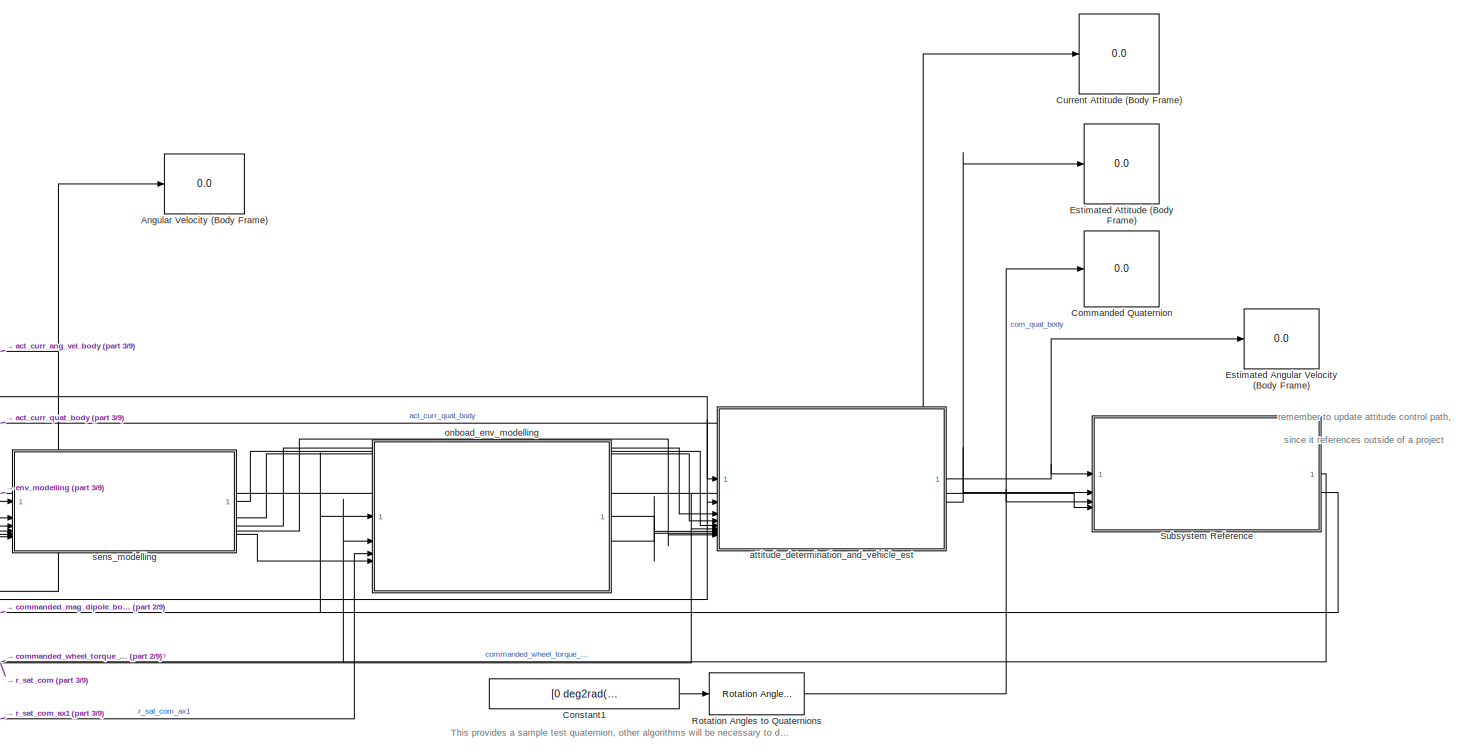
[diagram: root canvas - part 1/9, top right region]
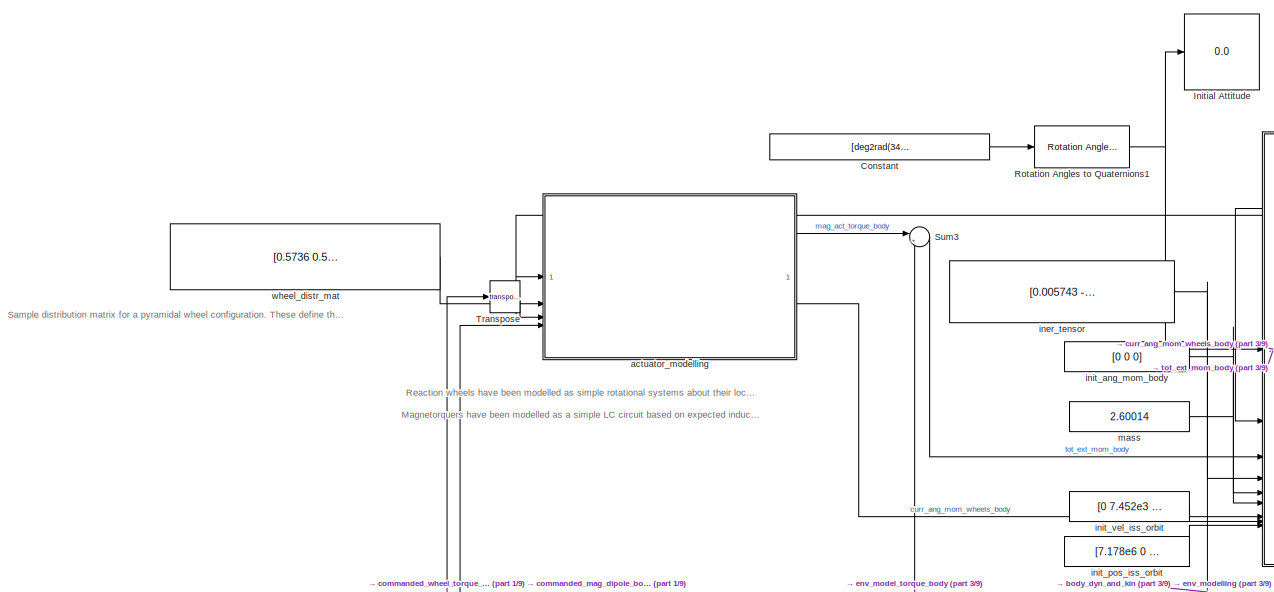
[diagram: root canvas - part 2/9, top left region]
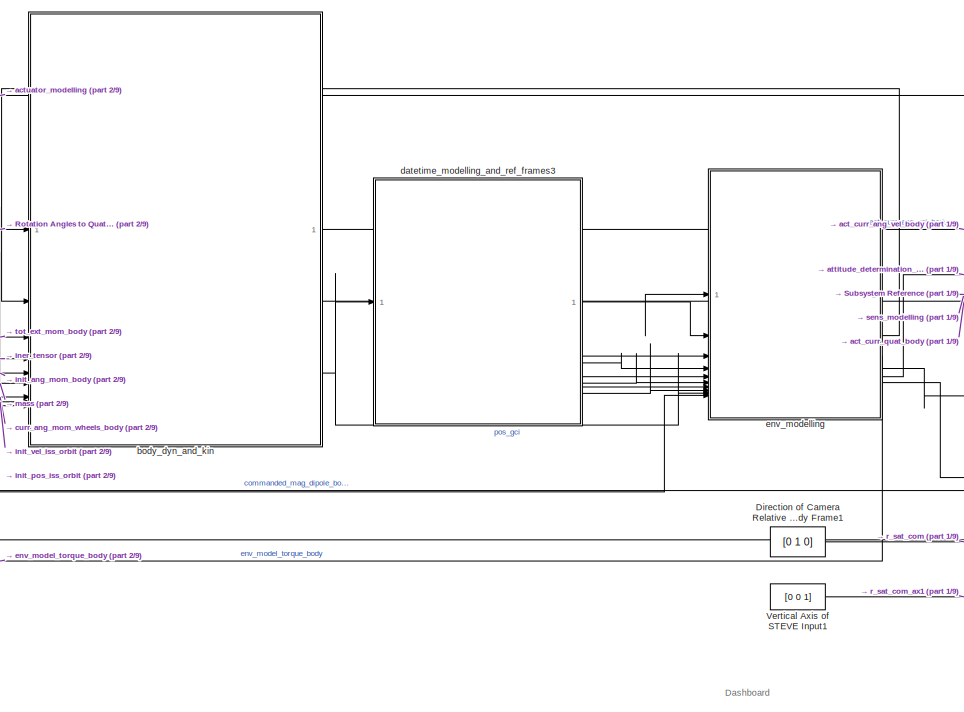
[diagram: root canvas - part 3/9, top center region]
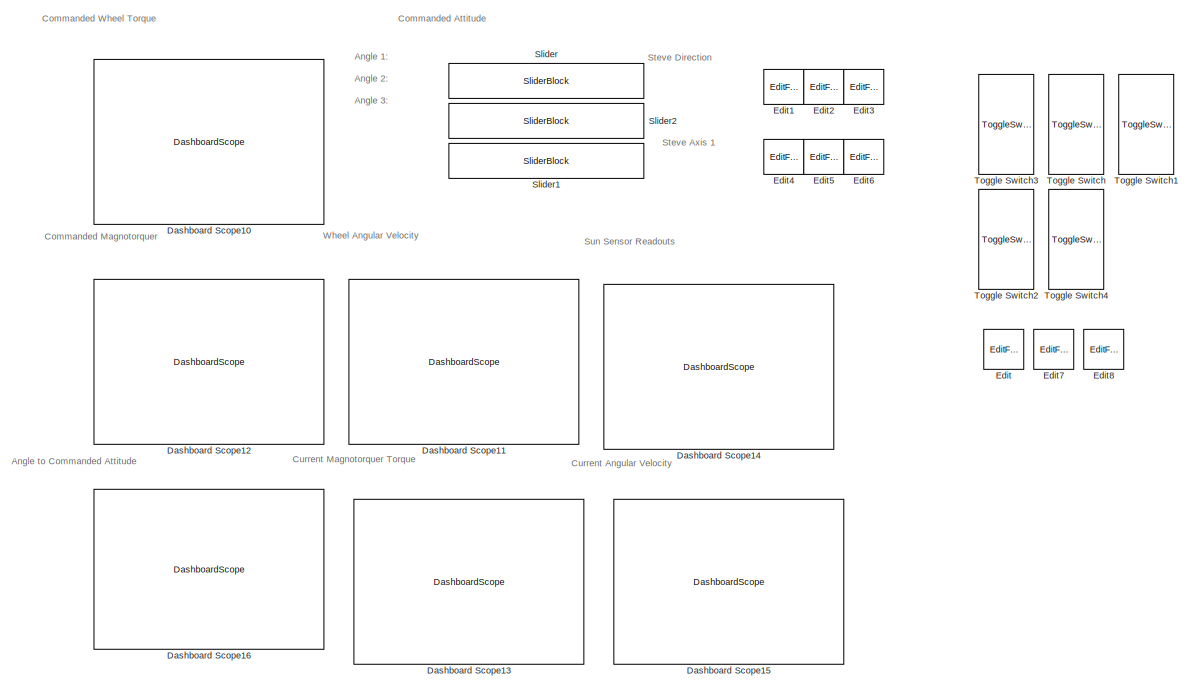
[diagram: root canvas - part 4/9, middle right region]
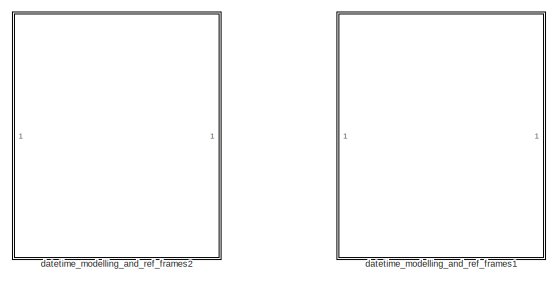
[diagram: root canvas - part 5/9, central region]
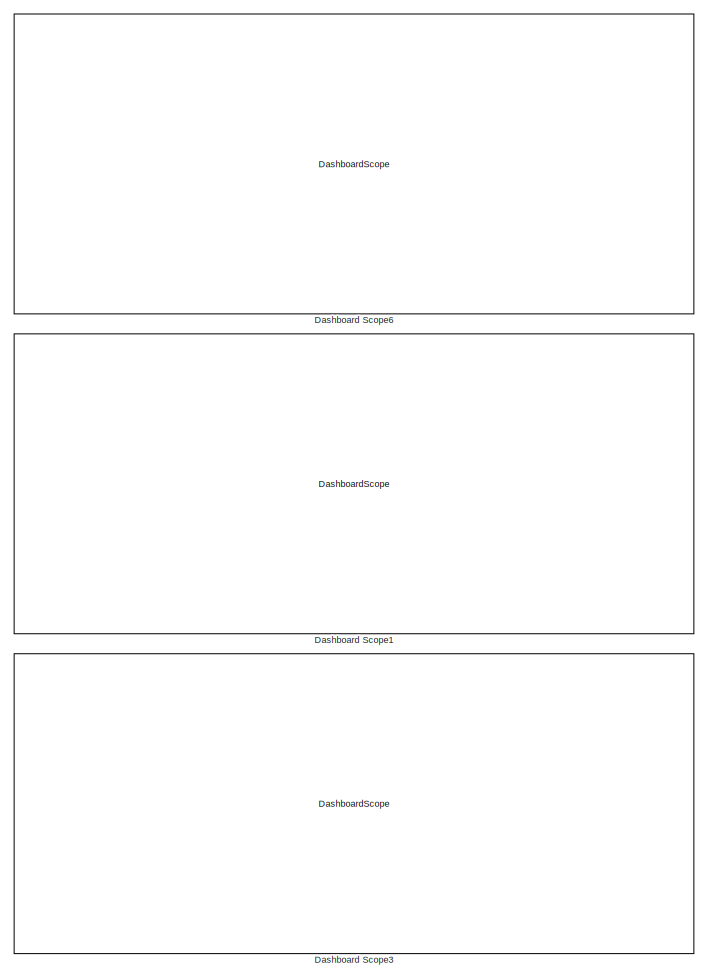
[diagram: root canvas - part 6/9, bottom left region]
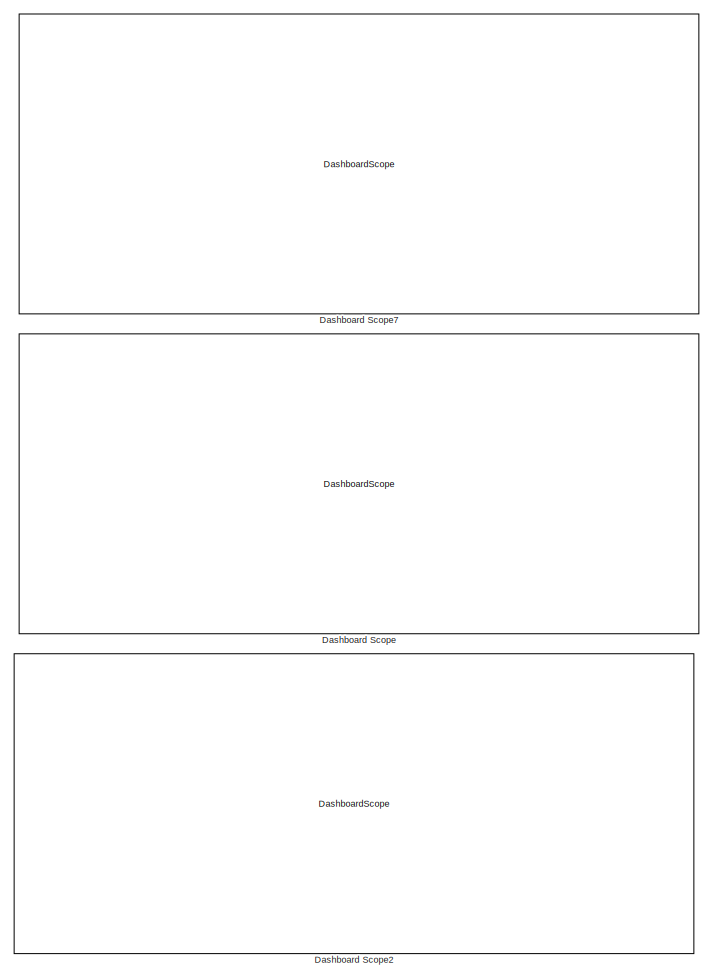
[diagram: root canvas - part 7/9, bottom center region]
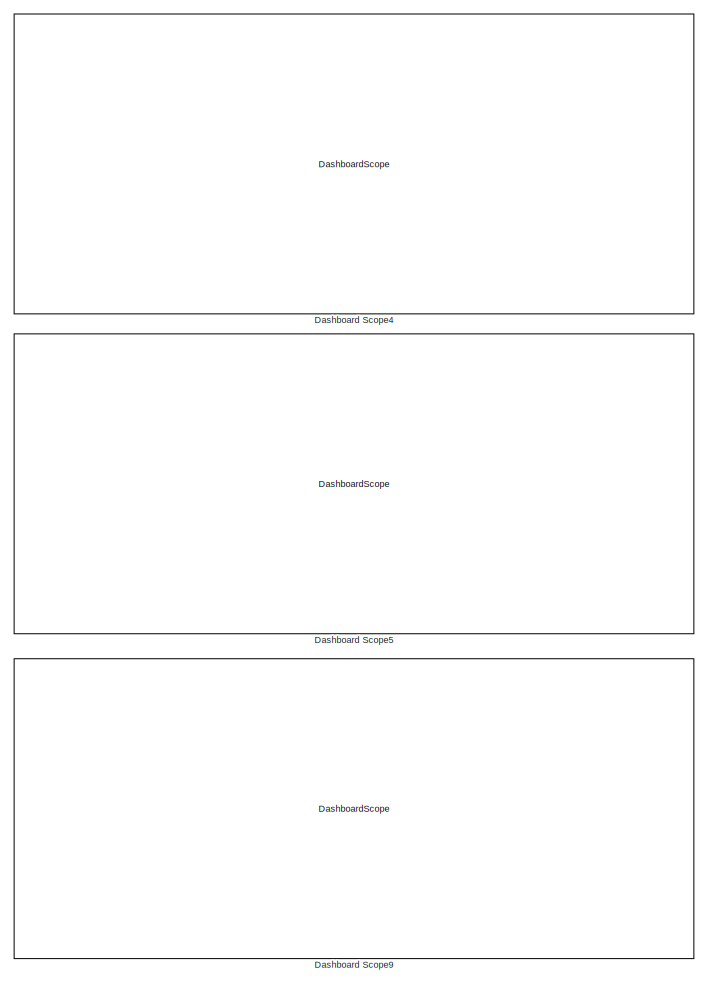
[diagram: root canvas - part 8/9, bottom center region]
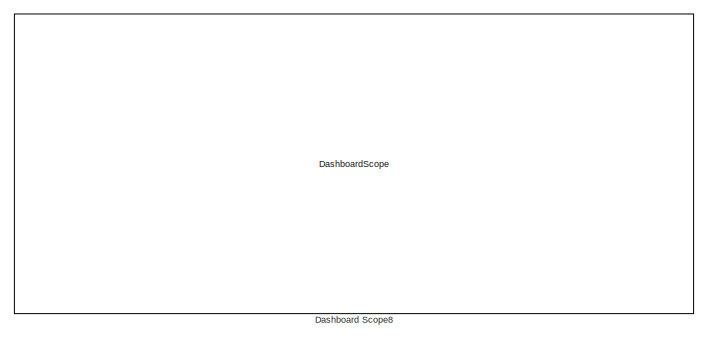
[diagram: root canvas - part 9/9, bottom right region]
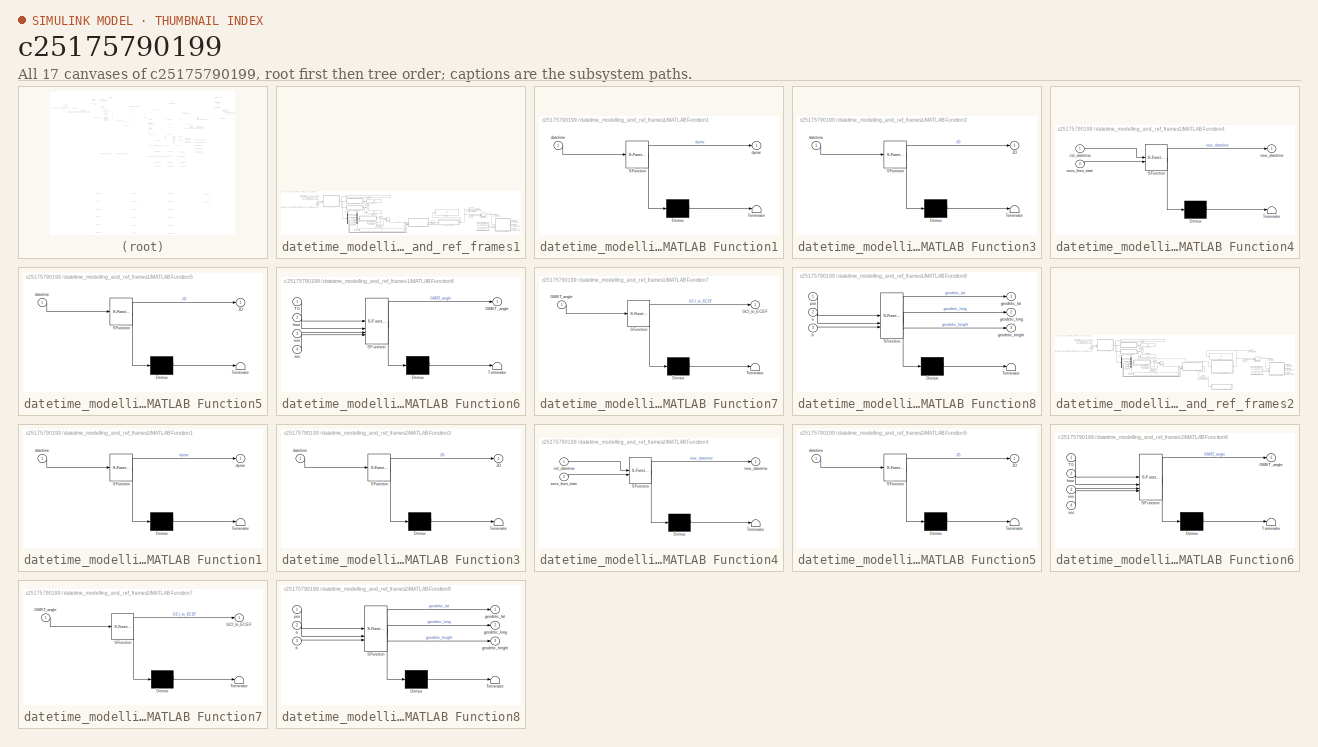
[diagram: thumbnail index - all 17 canvases of the model, root first then tree order]
MODEL slx_c25175790199
KIND model
CONFIG AbsTol = auto
CONFIG EnableMultiTasking = off
CONFIG FixedStep = 0.01
CONFIG MaxStep = 1
CONFIG MinStep = 0.001
CONFIG RelTol = 1e-3
CONFIG SampleTimeConstraint = Unconstrained
CONFIG SolverName = FixedStepAuto
CONFIG StartTime = 0.0
CONFIG StopTime = 7200
BLOCK [Display] Angular Velocity (Body Frame)
  Decimation = 1
BLOCK [Display] Commanded Quaternion
  Decimation = 1
BLOCK [Constant] Constant
  Value = [deg2rad(34) deg2rad(-63) deg2rad(21)]
BLOCK [Constant] Constant1
  Value = [0 deg2rad(135) deg2rad(-30)]
BLOCK [Display] Current Attitude (Body Frame)
  Decimation = 1
BLOCK [DashboardScope] Dashboard Scope
BLOCK [DashboardScope] Dashboard Scope1
BLOCK [DashboardScope] Dashboard Scope10
  Commented = on
  NormalizeYAxis = on
  TicksPosition = Inside
  Ymin = 0
BLOCK [DashboardScope] Dashboard Scope11
  Commented = on
  TicksPosition = Inside
BLOCK [DashboardScope] Dashboard Scope12
  Commented = on
  TicksPosition = Inside
BLOCK [DashboardScope] Dashboard Scope13
  Commented = on
  TicksPosition = Inside
BLOCK [DashboardScope] Dashboard Scope14
  Commented = on
  TicksPosition = Inside
BLOCK [DashboardScope] Dashboard Scope15
  Commented = on
  TicksPosition = Inside
BLOCK [DashboardScope] Dashboard Scope16
  Commented = on
  NormalizeYAxis = on
  TicksPosition = Inside
  UpdateMode = Scroll
  Ymin = 0
BLOCK [DashboardScope] Dashboard Scope2
BLOCK [DashboardScope] Dashboard Scope3
BLOCK [DashboardScope] Dashboard Scope4
BLOCK [DashboardScope] Dashboard Scope5
BLOCK [DashboardScope] Dashboard Scope6
BLOCK [DashboardScope] Dashboard Scope7
BLOCK [DashboardScope] Dashboard Scope8
BLOCK [DashboardScope] Dashboard Scope9
BLOCK [Constant] Direction of Camera Relative to Body Frame1
  Value = [0 1 0]
BLOCK [EditField] Edit
  Alignment = Center
  Commented = on
  LabelPosition = Hide
  ShowInitialText = on
BLOCK [EditField] Edit1
  Alignment = Center
  Commented = on
  LabelPosition = Hide
  ShowInitialText = on
BLOCK [EditField] Edit2
  Alignment = Center
  Commented = on
  LabelPosition = Hide
  ShowInitialText = on
BLOCK [EditField] Edit3
  Alignment = Center
  Commented = on
  LabelPosition = Hide
  ShowInitialText = on
BLOCK [EditField] Edit4
  Alignment = Center
  Commented = on
  LabelPosition = Hide
  ShowInitialText = on
BLOCK [EditField] Edit5
  Alignment = Center
  Commented = on
  LabelPosition = Hide
  ShowInitialText = on
BLOCK [EditField] Edit6
  Alignment = Center
  Commented = on
  LabelPosition = Hide
  ShowInitialText = on
BLOCK [EditField] Edit7
  Alignment = Center
  Commented = on
  LabelPosition = Hide
  ShowInitialText = on
BLOCK [EditField] Edit8
  Alignment = Center
  Commented = on
  LabelPosition = Hide
  ShowInitialText = on
BLOCK [Display] Estimated Angular Velocity (Body Frame)
  Decimation = 1
BLOCK [Display] Estimated Attitude (Body Frame)
  Decimation = 1
BLOCK [Display] Initial Attitude
  Decimation = 1
BLOCK [Reference] Rotation Angles to Quaternions  REF=sharedtransform/Rotation Angles to Quaternions
  AttributesFormatString = Rotation Order: %<rotationOrder>
  LibrarySourceBlock = aerolibtransform2/Rotation Angles to Quaternions
  SourceBlock = sharedtransform/Rotation Angles to Quaternions
  SourceType = Ang2Quat
BLOCK [Reference] Rotation Angles to Quaternions1  REF=sharedtransform/Rotation Angles to Quaternions
  AttributesFormatString = Rotation Order: %<rotationOrder>
  LibrarySourceBlock = aerolibtransform2/Rotation Angles to Quaternions
  SourceBlock = sharedtransform/Rotation Angles to Quaternions
  SourceType = Ang2Quat
BLOCK [SliderBlock] Slider
  Commented = on
  LabelPosition = Hide
  ScaleMax = 3.1415
  ScaleMin = -3.1415
BLOCK [SliderBlock] Slider1
  Commented = on
  LabelPosition = Hide
  ScaleMax = 3.1415
  ScaleMin = -3.1415
BLOCK [SliderBlock] Slider2
  Commented = on
  LabelPosition = Hide
  ScaleMax = 3.1415
  ScaleMin = -3.1415
BLOCK [SubSystem] Subsystem Reference
  ReferencedSubsystem = attitude_control
BLOCK [Sum] Sum3
  Inputs = |++
BLOCK [ToggleSwitchBlock] Toggle Switch
  Commented = on
BLOCK [ToggleSwitchBlock] Toggle Switch1
  Commented = on
BLOCK [ToggleSwitchBlock] Toggle Switch2
  Commented = on
BLOCK [ToggleSwitchBlock] Toggle Switch3
  Commented = on
BLOCK [ToggleSwitchBlock] Toggle Switch4
  Commented = on
BLOCK [Math] Transpose
  Operator = transpose
BLOCK [Constant] Vertical Axis of STEVE Input1
  Value = [0 0 1]
BLOCK [SubSystem] actuator_modelling
  ReferencedSubsystem = actuator_modelling
BLOCK [SubSystem] attitude_determination_and_vehicle_est
  ReferencedSubsystem = attitude_determination_and_vehicle_est
BLOCK [SubSystem] body_dyn_and_kin
  ReferencedSubsystem = body_dyn_and_kin
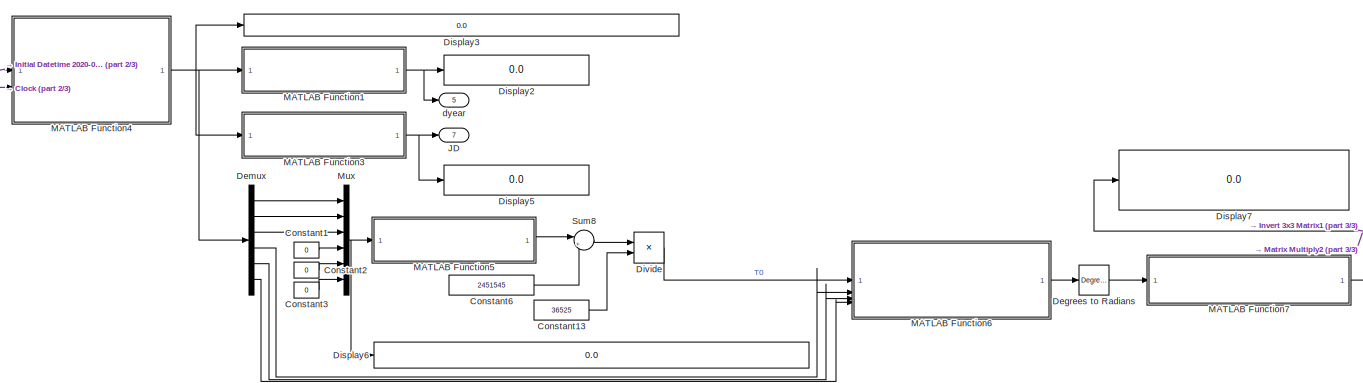
[diagram: datetime_modelling_and_ref_frames1 - part 1/3, center side, full height]
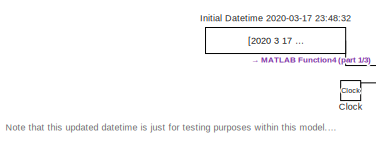
[diagram: datetime_modelling_and_ref_frames1 - part 2/3, top left region]
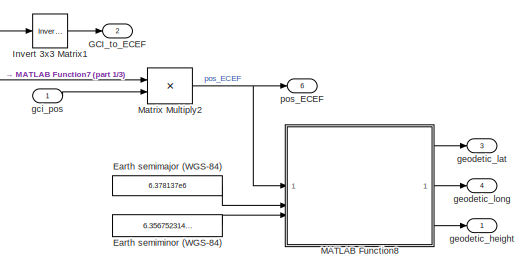
[diagram: datetime_modelling_and_ref_frames1 - part 3/3, middle right region]
BLOCK [SubSystem] datetime_modelling_and_ref_frames1
  Commented = on
BLOCK [Clock] datetime_modelling_and_ref_frames1/Clock
BLOCK [Constant] datetime_modelling_and_ref_frames1/Constant1
  Value = 0
BLOCK [Constant] datetime_modelling_and_ref_frames1/Constant13
  Value = 36525
BLOCK [Constant] datetime_modelling_and_ref_frames1/Constant2
  Value = 0
BLOCK [Constant] datetime_modelling_and_ref_frames1/Constant3
  Value = 0
BLOCK [Constant] datetime_modelling_and_ref_frames1/Constant6
  Value = 2451545
BLOCK [Reference] datetime_modelling_and_ref_frames1/Degrees to Radians  REF=simulink_extras/Transformations/Degrees to
Radians
  SourceBlock = simulink_extras/Transformations/Degrees to\nRadians
  SourceType = DegreesToRadians
BLOCK [Demux] datetime_modelling_and_ref_frames1/Demux
  Outputs = 6
BLOCK [Display] datetime_modelling_and_ref_frames1/Display2
  Decimation = 1
  Format = long
BLOCK [Display] datetime_modelling_and_ref_frames1/Display3
  Decimation = 1
BLOCK [Display] datetime_modelling_and_ref_frames1/Display5
  Decimation = 1
  Format = long
BLOCK [Display] datetime_modelling_and_ref_frames1/Display6
  Decimation = 1
BLOCK [Display] datetime_modelling_and_ref_frames1/Display7
  Decimation = 1
BLOCK [Product] datetime_modelling_and_ref_frames1/Divide
  Inputs = */
BLOCK [Constant] datetime_modelling_and_ref_frames1/Earth semimajor (WGS-84)
  Value = 6.378137e6
BLOCK [Constant] datetime_modelling_and_ref_frames1/Earth semiminor (WGS-84)
  Value = 6.3567523142e6
BLOCK [Outport] datetime_modelling_and_ref_frames1/GCI_to_ECEF
  Port = 2
BLOCK [Constant] datetime_modelling_and_ref_frames1/Initial Datetime 2020-03-17 23:48:32
  Value = [2020 3 17 23 48 32]
BLOCK [Reference] datetime_modelling_and_ref_frames1/Invert 3x3 Matrix1  REF=aerolibutil/Invert 
3x3 Matrix
  SourceBlock = aerolibutil/Invert \n3x3 Matrix
  SourceType = Invert 3x3 Matrix
BLOCK [Outport] datetime_modelling_and_ref_frames1/JD
  Port = 7
BLOCK [SubSystem] datetime_modelling_and_ref_frames1/MATLAB Function1
  ErrorFcn = Stateflow.Translate.translate
  PermitHierarchicalResolution = ExplicitOnly
  SFBlockType = MATLAB Function
  TreatAsAtomicUnit = on
BLOCK [Demux] datetime_modelling_and_ref_frames1/MATLAB Function1/ Demux 
  Outputs = 1
BLOCK [S-Function] datetime_modelling_and_ref_frames1/MATLAB Function1/ SFunction 
  EnableBusSupport = on
  FunctionName = sf_sfun
  PortCounts = [1 2]
  SFcnIsStateOwnerBlock = off
  SFunctionDeploymentMode = off
  Tag = Stateflow S-Function 5
BLOCK [Terminator] datetime_modelling_and_ref_frames1/MATLAB Function1/ Terminator 
BLOCK [Inport] datetime_modelling_and_ref_frames1/MATLAB Function1/datetime
BLOCK [Outport] datetime_modelling_and_ref_frames1/MATLAB Function1/dyear
BLOCK [SubSystem] datetime_modelling_and_ref_frames1/MATLAB Function3
  ErrorFcn = Stateflow.Translate.translate
  PermitHierarchicalResolution = ExplicitOnly
  SFBlockType = MATLAB Function
  TreatAsAtomicUnit = on
BLOCK [Demux] datetime_modelling_and_ref_frames1/MATLAB Function3/ Demux 
  Outputs = 1
BLOCK [S-Function] datetime_modelling_and_ref_frames1/MATLAB Function3/ SFunction 
  EnableBusSupport = on
  FunctionName = sf_sfun
  PortCounts = [1 2]
  SFcnIsStateOwnerBlock = off
  SFunctionDeploymentMode = off
  Tag = Stateflow S-Function 19
BLOCK [Terminator] datetime_modelling_and_ref_frames1/MATLAB Function3/ Terminator 
BLOCK [Outport] datetime_modelling_and_ref_frames1/MATLAB Function3/JD
BLOCK [Inport] datetime_modelling_and_ref_frames1/MATLAB Function3/datetime
BLOCK [SubSystem] datetime_modelling_and_ref_frames1/MATLAB Function4
  ErrorFcn = Stateflow.Translate.translate
  PermitHierarchicalResolution = ExplicitOnly
  SFBlockType = MATLAB Function
  TreatAsAtomicUnit = on
BLOCK [Demux] datetime_modelling_and_ref_frames1/MATLAB Function4/ Demux 
  Outputs = 1
BLOCK [S-Function] datetime_modelling_and_ref_frames1/MATLAB Function4/ SFunction 
  EnableBusSupport = on
  FunctionName = sf_sfun
  PortCounts = [2 2]
  SFcnIsStateOwnerBlock = off
  SFunctionDeploymentMode = off
  Tag = Stateflow S-Function 20
BLOCK [Terminator] datetime_modelling_and_ref_frames1/MATLAB Function4/ Terminator 
BLOCK [Inport] datetime_modelling_and_ref_frames1/MATLAB Function4/init_datetime
BLOCK [Outport] datetime_modelling_and_ref_frames1/MATLAB Function4/new_datetime
BLOCK [Inport] datetime_modelling_and_ref_frames1/MATLAB Function4/secs_from_start
  Port = 2
BLOCK [SubSystem] datetime_modelling_and_ref_frames1/MATLAB Function5
  ErrorFcn = Stateflow.Translate.translate
  PermitHierarchicalResolution = ExplicitOnly
  SFBlockType = MATLAB Function
  TreatAsAtomicUnit = on
BLOCK [Demux] datetime_modelling_and_ref_frames1/MATLAB Function5/ Demux 
  Outputs = 1
BLOCK [S-Function] datetime_modelling_and_ref_frames1/MATLAB Function5/ SFunction 
  EnableBusSupport = on
  FunctionName = sf_sfun
  PortCounts = [1 2]
  SFcnIsStateOwnerBlock = off
  SFunctionDeploymentMode = off
  Tag = Stateflow S-Function 21
BLOCK [Terminator] datetime_modelling_and_ref_frames1/MATLAB Function5/ Terminator 
BLOCK [Outport] datetime_modelling_and_ref_frames1/MATLAB Function5/JD
BLOCK [Inport] datetime_modelling_and_ref_frames1/MATLAB Function5/datetime
BLOCK [SubSystem] datetime_modelling_and_ref_frames1/MATLAB Function6
  ErrorFcn = Stateflow.Translate.translate
  PermitHierarchicalResolution = ExplicitOnly
  SFBlockType = MATLAB Function
  TreatAsAtomicUnit = on
BLOCK [Demux] datetime_modelling_and_ref_frames1/MATLAB Function6/ Demux 
  Outputs = 1
BLOCK [S-Function] datetime_modelling_and_ref_frames1/MATLAB Function6/ SFunction 
  EnableBusSupport = on
  FunctionName = sf_sfun
  PortCounts = [4 2]
  SFcnIsStateOwnerBlock = off
  SFunctionDeploymentMode = off
  Tag = Stateflow S-Function 22
BLOCK [Terminator] datetime_modelling_and_ref_frames1/MATLAB Function6/ Terminator 
BLOCK [Outport] datetime_modelling_and_ref_frames1/MATLAB Function6/GMST_angle
BLOCK [Inport] datetime_modelling_and_ref_frames1/MATLAB Function6/T0
BLOCK [Inport] datetime_modelling_and_ref_frames1/MATLAB Function6/hour
  Port = 2
BLOCK [Inport] datetime_modelling_and_ref_frames1/MATLAB Function6/min
  Port = 3
BLOCK [Inport] datetime_modelling_and_ref_frames1/MATLAB Function6/sec
  Port = 4
BLOCK [SubSystem] datetime_modelling_and_ref_frames1/MATLAB Function7
  ErrorFcn = Stateflow.Translate.translate
  PermitHierarchicalResolution = ExplicitOnly
  SFBlockType = MATLAB Function
  TreatAsAtomicUnit = on
BLOCK [Demux] datetime_modelling_and_ref_frames1/MATLAB Function7/ Demux 
  Outputs = 1
BLOCK [S-Function] datetime_modelling_and_ref_frames1/MATLAB Function7/ SFunction 
  EnableBusSupport = on
  FunctionName = sf_sfun
  PortCounts = [1 2]
  SFcnIsStateOwnerBlock = off
  SFunctionDeploymentMode = off
  Tag = Stateflow S-Function 23
BLOCK [Terminator] datetime_modelling_and_ref_frames1/MATLAB Function7/ Terminator 
BLOCK [Outport] datetime_modelling_and_ref_frames1/MATLAB Function7/GCI_to_ECEF
BLOCK [Inport] datetime_modelling_and_ref_frames1/MATLAB Function7/GMST_angle
BLOCK [SubSystem] datetime_modelling_and_ref_frames1/MATLAB Function8
  ErrorFcn = Stateflow.Translate.translate
  PermitHierarchicalResolution = ExplicitOnly
  SFBlockType = MATLAB Function
  TreatAsAtomicUnit = on
BLOCK [Demux] datetime_modelling_and_ref_frames1/MATLAB Function8/ Demux 
  Outputs = 1
BLOCK [S-Function] datetime_modelling_and_ref_frames1/MATLAB Function8/ SFunction 
  EnableBusSupport = on
  FunctionName = sf_sfun
  PortCounts = [3 4]
  SFcnIsStateOwnerBlock = off
  SFunctionDeploymentMode = off
  Tag = Stateflow S-Function 24
BLOCK [Terminator] datetime_modelling_and_ref_frames1/MATLAB Function8/ Terminator 
BLOCK [Inport] datetime_modelling_and_ref_frames1/MATLAB Function8/a
  Port = 2
BLOCK [Inport] datetime_modelling_and_ref_frames1/MATLAB Function8/b
  Port = 3
BLOCK [Outport] datetime_modelling_and_ref_frames1/MATLAB Function8/geodetic_height
  Port = 3
BLOCK [Outport] datetime_modelling_and_ref_frames1/MATLAB Function8/geodetic_lat
BLOCK [Outport] datetime_modelling_and_ref_frames1/MATLAB Function8/geodetic_long
  Port = 2
BLOCK [Inport] datetime_modelling_and_ref_frames1/MATLAB Function8/pos
BLOCK [Product] datetime_modelling_and_ref_frames1/Matrix Multiply2
  Multiplication = Matrix(*)
BLOCK [Mux] datetime_modelling_and_ref_frames1/Mux
  DisplayOption = bar
  Inputs = 6
BLOCK [Sum] datetime_modelling_and_ref_frames1/Sum8
  Inputs = |+-
BLOCK [Outport] datetime_modelling_and_ref_frames1/dyear
  Port = 5
BLOCK [Inport] datetime_modelling_and_ref_frames1/gci_pos
BLOCK [Outport] datetime_modelling_and_ref_frames1/geodetic_height
BLOCK [Outport] datetime_modelling_and_ref_frames1/geodetic_lat
  Port = 3
BLOCK [Outport] datetime_modelling_and_ref_frames1/geodetic_long
  Port = 4
BLOCK [Outport] datetime_modelling_and_ref_frames1/pos_ECEF
  Port = 6
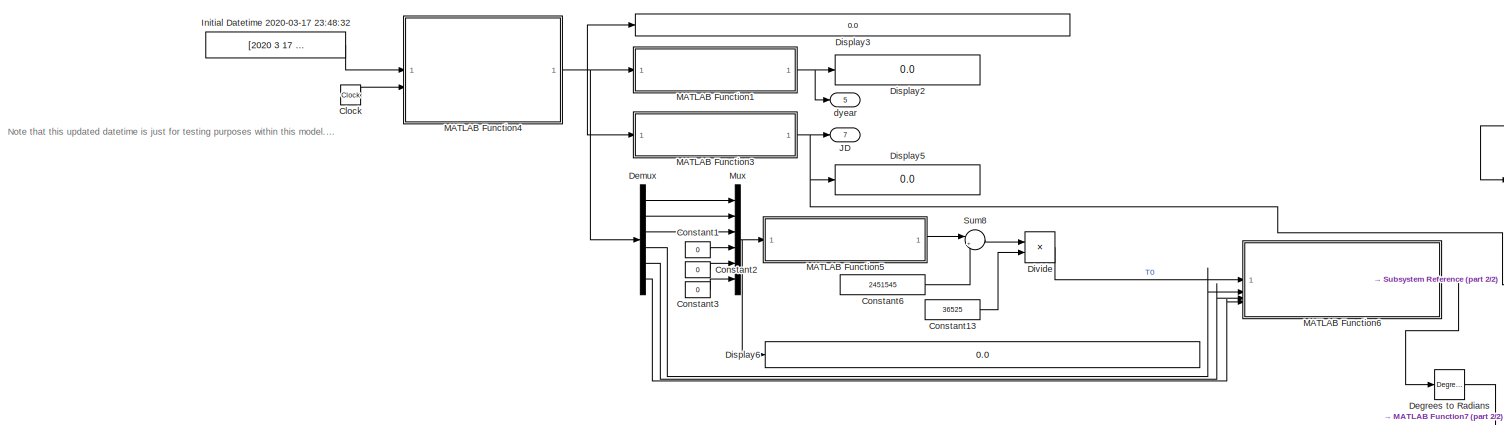
[diagram: datetime_modelling_and_ref_frames2 - part 1/2, left side, full height]
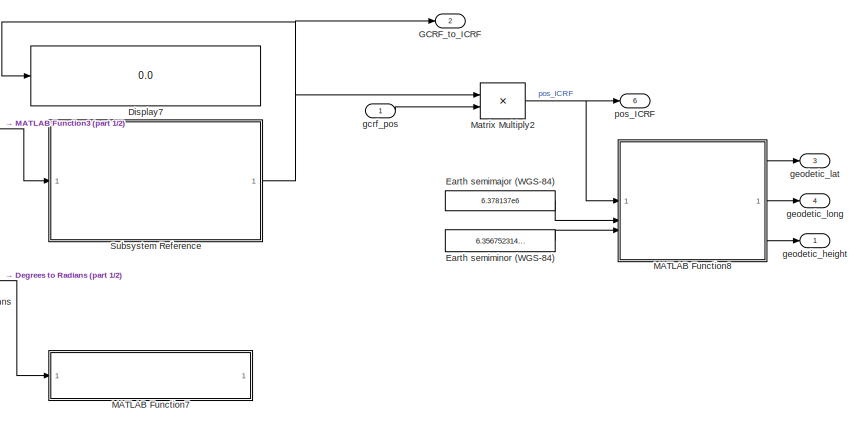
[diagram: datetime_modelling_and_ref_frames2 - part 2/2, right side, full height]
BLOCK [SubSystem] datetime_modelling_and_ref_frames2
  Commented = on
BLOCK [Clock] datetime_modelling_and_ref_frames2/Clock
BLOCK [Constant] datetime_modelling_and_ref_frames2/Constant1
  Value = 0
BLOCK [Constant] datetime_modelling_and_ref_frames2/Constant13
  Value = 36525
BLOCK [Constant] datetime_modelling_and_ref_frames2/Constant2
  Value = 0
BLOCK [Constant] datetime_modelling_and_ref_frames2/Constant3
  Value = 0
BLOCK [Constant] datetime_modelling_and_ref_frames2/Constant6
  Value = 2451545
BLOCK [Reference] datetime_modelling_and_ref_frames2/Degrees to Radians  REF=simulink_extras/Transformations/Degrees to
Radians
  SourceBlock = simulink_extras/Transformations/Degrees to\nRadians
  SourceType = DegreesToRadians
BLOCK [Demux] datetime_modelling_and_ref_frames2/Demux
  Outputs = 6
BLOCK [Display] datetime_modelling_and_ref_frames2/Display2
  Decimation = 1
  Format = long
BLOCK [Display] datetime_modelling_and_ref_frames2/Display3
  Decimation = 1
BLOCK [Display] datetime_modelling_and_ref_frames2/Display5
  Decimation = 1
  Format = long
BLOCK [Display] datetime_modelling_and_ref_frames2/Display6
  Decimation = 1
BLOCK [Display] datetime_modelling_and_ref_frames2/Display7
  Decimation = 1
BLOCK [Product] datetime_modelling_and_ref_frames2/Divide
  Inputs = */
BLOCK [Constant] datetime_modelling_and_ref_frames2/Earth semimajor (WGS-84)
  Value = 6.378137e6
BLOCK [Constant] datetime_modelling_and_ref_frames2/Earth semiminor (WGS-84)
  Value = 6.3567523142e6
BLOCK [Outport] datetime_modelling_and_ref_frames2/GCRF_to_ICRF
  Port = 2
BLOCK [Constant] datetime_modelling_and_ref_frames2/Initial Datetime 2020-03-17 23:48:32
  Value = [2020 3 17 23 48 32]
BLOCK [Outport] datetime_modelling_and_ref_frames2/JD
  Port = 7
BLOCK [SubSystem] datetime_modelling_and_ref_frames2/MATLAB Function1
  ErrorFcn = Stateflow.Translate.translate
  PermitHierarchicalResolution = ExplicitOnly
  SFBlockType = MATLAB Function
  TreatAsAtomicUnit = on
BLOCK [Demux] datetime_modelling_and_ref_frames2/MATLAB Function1/ Demux 
  Outputs = 1
BLOCK [S-Function] datetime_modelling_and_ref_frames2/MATLAB Function1/ SFunction 
  EnableBusSupport = on
  FunctionName = sf_sfun
  PortCounts = [1 2]
  SFcnIsStateOwnerBlock = off
  SFunctionDeploymentMode = off
  Tag = Stateflow S-Function 28
BLOCK [Terminator] datetime_modelling_and_ref_frames2/MATLAB Function1/ Terminator 
BLOCK [Inport] datetime_modelling_and_ref_frames2/MATLAB Function1/datetime
BLOCK [Outport] datetime_modelling_and_ref_frames2/MATLAB Function1/dyear
BLOCK [SubSystem] datetime_modelling_and_ref_frames2/MATLAB Function3
  ErrorFcn = Stateflow.Translate.translate
  PermitHierarchicalResolution = ExplicitOnly
  SFBlockType = MATLAB Function
  TreatAsAtomicUnit = on
BLOCK [Demux] datetime_modelling_and_ref_frames2/MATLAB Function3/ Demux 
  Outputs = 1
BLOCK [S-Function] datetime_modelling_and_ref_frames2/MATLAB Function3/ SFunction 
  EnableBusSupport = on
  FunctionName = sf_sfun
  PortCounts = [1 2]
  SFcnIsStateOwnerBlock = off
  SFunctionDeploymentMode = off
  Tag = Stateflow S-Function 29
BLOCK [Terminator] datetime_modelling_and_ref_frames2/MATLAB Function3/ Terminator 
BLOCK [Outport] datetime_modelling_and_ref_frames2/MATLAB Function3/JD
BLOCK [Inport] datetime_modelling_and_ref_frames2/MATLAB Function3/datetime
BLOCK [SubSystem] datetime_modelling_and_ref_frames2/MATLAB Function4
  ErrorFcn = Stateflow.Translate.translate
  PermitHierarchicalResolution = ExplicitOnly
  SFBlockType = MATLAB Function
  TreatAsAtomicUnit = on
BLOCK [Demux] datetime_modelling_and_ref_frames2/MATLAB Function4/ Demux 
  Outputs = 1
BLOCK [S-Function] datetime_modelling_and_ref_frames2/MATLAB Function4/ SFunction 
  EnableBusSupport = on
  FunctionName = sf_sfun
  PortCounts = [2 2]
  SFcnIsStateOwnerBlock = off
  SFunctionDeploymentMode = off
  Tag = Stateflow S-Function 30
BLOCK [Terminator] datetime_modelling_and_ref_frames2/MATLAB Function4/ Terminator 
BLOCK [Inport] datetime_modelling_and_ref_frames2/MATLAB Function4/init_datetime
BLOCK [Outport] datetime_modelling_and_ref_frames2/MATLAB Function4/new_datetime
BLOCK [Inport] datetime_modelling_and_ref_frames2/MATLAB Function4/secs_from_start
  Port = 2
BLOCK [SubSystem] datetime_modelling_and_ref_frames2/MATLAB Function5
  ErrorFcn = Stateflow.Translate.translate
  PermitHierarchicalResolution = ExplicitOnly
  SFBlockType = MATLAB Function
  TreatAsAtomicUnit = on
BLOCK [Demux] datetime_modelling_and_ref_frames2/MATLAB Function5/ Demux 
  Outputs = 1
BLOCK [S-Function] datetime_modelling_and_ref_frames2/MATLAB Function5/ SFunction 
  EnableBusSupport = on
  FunctionName = sf_sfun
  PortCounts = [1 2]
  SFcnIsStateOwnerBlock = off
  SFunctionDeploymentMode = off
  Tag = Stateflow S-Function 31
BLOCK [Terminator] datetime_modelling_and_ref_frames2/MATLAB Function5/ Terminator 
BLOCK [Outport] datetime_modelling_and_ref_frames2/MATLAB Function5/JD
BLOCK [Inport] datetime_modelling_and_ref_frames2/MATLAB Function5/datetime
BLOCK [SubSystem] datetime_modelling_and_ref_frames2/MATLAB Function6
  ErrorFcn = Stateflow.Translate.translate
  PermitHierarchicalResolution = ExplicitOnly
  SFBlockType = MATLAB Function
  TreatAsAtomicUnit = on
BLOCK [Demux] datetime_modelling_and_ref_frames2/MATLAB Function6/ Demux 
  Outputs = 1
BLOCK [S-Function] datetime_modelling_and_ref_frames2/MATLAB Function6/ SFunction 
  EnableBusSupport = on
  FunctionName = sf_sfun
  PortCounts = [4 2]
  SFcnIsStateOwnerBlock = off
  SFunctionDeploymentMode = off
  Tag = Stateflow S-Function 32
BLOCK [Terminator] datetime_modelling_and_ref_frames2/MATLAB Function6/ Terminator 
BLOCK [Outport] datetime_modelling_and_ref_frames2/MATLAB Function6/GMST_angle
BLOCK [Inport] datetime_modelling_and_ref_frames2/MATLAB Function6/T0
BLOCK [Inport] datetime_modelling_and_ref_frames2/MATLAB Function6/hour
  Port = 2
BLOCK [Inport] datetime_modelling_and_ref_frames2/MATLAB Function6/min
  Port = 3
BLOCK [Inport] datetime_modelling_and_ref_frames2/MATLAB Function6/sec
  Port = 4
BLOCK [SubSystem] datetime_modelling_and_ref_frames2/MATLAB Function7
  ErrorFcn = Stateflow.Translate.translate
  PermitHierarchicalResolution = ExplicitOnly
  SFBlockType = MATLAB Function
  TreatAsAtomicUnit = on
BLOCK [Demux] datetime_modelling_and_ref_frames2/MATLAB Function7/ Demux 
  Outputs = 1
BLOCK [S-Function] datetime_modelling_and_ref_frames2/MATLAB Function7/ SFunction 
  EnableBusSupport = on
  FunctionName = sf_sfun
  PortCounts = [1 2]
  SFcnIsStateOwnerBlock = off
  SFunctionDeploymentMode = off
  Tag = Stateflow S-Function 33
BLOCK [Terminator] datetime_modelling_and_ref_frames2/MATLAB Function7/ Terminator 
BLOCK [Outport] datetime_modelling_and_ref_frames2/MATLAB Function7/GCI_to_ECEF
BLOCK [Inport] datetime_modelling_and_ref_frames2/MATLAB Function7/GMST_angle
BLOCK [SubSystem] datetime_modelling_and_ref_frames2/MATLAB Function8
  ErrorFcn = Stateflow.Translate.translate
  PermitHierarchicalResolution = ExplicitOnly
  SFBlockType = MATLAB Function
  TreatAsAtomicUnit = on
BLOCK [Demux] datetime_modelling_and_ref_frames2/MATLAB Function8/ Demux 
  Outputs = 1
BLOCK [S-Function] datetime_modelling_and_ref_frames2/MATLAB Function8/ SFunction 
  EnableBusSupport = on
  FunctionName = sf_sfun
  PortCounts = [3 4]
  SFcnIsStateOwnerBlock = off
  SFunctionDeploymentMode = off
  Tag = Stateflow S-Function 34
BLOCK [Terminator] datetime_modelling_and_ref_frames2/MATLAB Function8/ Terminator 
BLOCK [Inport] datetime_modelling_and_ref_frames2/MATLAB Function8/a
  Port = 2
BLOCK [Inport] datetime_modelling_and_ref_frames2/MATLAB Function8/b
  Port = 3
BLOCK [Outport] datetime_modelling_and_ref_frames2/MATLAB Function8/geodetic_height
  Port = 3
BLOCK [Outport] datetime_modelling_and_ref_frames2/MATLAB Function8/geodetic_lat
BLOCK [Outport] datetime_modelling_and_ref_frames2/MATLAB Function8/geodetic_long
  Port = 2
BLOCK [Inport] datetime_modelling_and_ref_frames2/MATLAB Function8/pos
BLOCK [Product] datetime_modelling_and_ref_frames2/Matrix Multiply2
  Multiplication = Matrix(*)
BLOCK [Mux] datetime_modelling_and_ref_frames2/Mux
  DisplayOption = bar
  Inputs = 6
BLOCK [SubSystem] datetime_modelling_and_ref_frames2/Subsystem Reference
  ReferencedSubsystem = GCRF_to_ICRF
BLOCK [Sum] datetime_modelling_and_ref_frames2/Sum8
  Inputs = |+-
BLOCK [Outport] datetime_modelling_and_ref_frames2/dyear
  Port = 5
BLOCK [Inport] datetime_modelling_and_ref_frames2/gcrf_pos
BLOCK [Outport] datetime_modelling_and_ref_frames2/geodetic_height
BLOCK [Outport] datetime_modelling_and_ref_frames2/geodetic_lat
  Port = 3
BLOCK [Outport] datetime_modelling_and_ref_frames2/geodetic_long
  Port = 4
BLOCK [Outport] datetime_modelling_and_ref_frames2/pos_ICRF
  Port = 6
BLOCK [SubSystem] datetime_modelling_and_ref_frames3
  ReferencedSubsystem = datetime_modelling_and_ref_frames
BLOCK [SubSystem] env_modelling
  ReferencedSubsystem = env_modelling
BLOCK [Constant] iner_tensor
  Value = [0.005743 -0.000107 -0.0006965 ; -0.000107 0.030927 0.000086 ; -0.000696 0.000086 0.030951]
BLOCK [Constant] init_ang_mom_body
  Value = [0 0 0]
BLOCK [Constant] init_pos_iss_orbit
  Value = [7.178e6 0 0]
BLOCK [Constant] init_vel_iss_orbit
  Value = [0 7.452e3 0]
BLOCK [Constant] mass
  Value = 2.60014
BLOCK [SubSystem] onboad_env_modelling
  ReferencedSubsystem = onboad_env_modelling
BLOCK [SubSystem] sens_modelling
  ReferencedSubsystem = sens_modelling
BLOCK [Constant] wheel_distr_mat
  Value = [0.5736 0.5736 0.5736 0.5736 ; 0.8192 -0.8192 0 0 ; 0 0 0.8192 -0.8192]
ANNOTATION (root): Steve Axis 1
ANNOTATION (root): Steve Direction
ANNOTATION (root): Angle 1: Angle 2: Angle 3:
ANNOTATION (root): Angle to Commanded Attitude
ANNOTATION (root): Commanded Attitude
ANNOTATION (root): Commanded Magnotorquer
ANNOTATION (root): Commanded Wheel Torque
ANNOTATION (root): Current Angular Velocity
ANNOTATION (root): Current Magnotorquer Torque
ANNOTATION (root): Dashboard
ANNOTATION (root): Reaction wheels have been modelled as simple rotational systems about their local rotational axes. The usage of the wheel distribution matrix has been used to determine their angular momentum with respect to the body frame. Magnetorquers have been modelled as a simple LC circuit based on expected inductance and resistance of the magnetorquer coil.
ANNOTATION (root): Sample distribution matrix for a pyramidal wheel configuration. These define the unit vectors of the rotational axes of the reaction wheels in the body frame and are similar to the configuration employed on our CubeSat.
ANNOTATION (root): Sun Sensor Readouts
ANNOTATION (root): This provides a sample test quaternion, other algorithms will be necessary to determine this commanded attitude.
ANNOTATION (root): Wheel Angular Velocity
ANNOTATION (root): remember to update attitude control path, since it references outside of a project
ANNOTATION datetime_modelling_and_ref_frames1: Note that this updated datetime is just for testing purposes within this model. In the actual satellite hardware we would receive a new datetime from CDH. This is a simplistic model that simply increments the lowest possible time first. When it overflows, the higher time will increment. Note that becuase an approximation of 275/9 days are present in each month, each month will only have 30 days.
ANNOTATION datetime_modelling_and_ref_frames2: Note that this updated datetime is just for testing purposes within this model. In the actual satellite hardware we would receive a new datetime from CDH. This is a simplistic model that simply increments the lowest possible time first. When it overflows, the higher time will increment. Note that becuase an approximation of 275/9 days are present in each month, each month will only have 30 days.
LINE Constant1:1 -> Rotation Angles to Quaternions:1
LINE Constant:1 -> Rotation Angles to Quaternions1:1
NET Direction of Camera Relative to Body Frame1:1 -> attitude_determination_and_vehicle_est:6, onboad_env_modelling:2, sens_modelling:5
NET Rotation Angles to Quaternions1:1 -> Initial Attitude:1, body_dyn_and_kin:1
NET Rotation Angles to Quaternions:1 -> Commanded Quaternion:1, Subsystem Reference:3
LINE Subsystem Reference:1 -> Transpose:1
NET Subsystem Reference:2 -> actuator_modelling:4, onboad_env_modelling:1
LINE Sum3:1 -> body_dyn_and_kin:3
LINE Transpose:1 -> actuator_modelling:3
NET Vertical Axis of STEVE Input1:1 -> onboad_env_modelling:3, sens_modelling:6
LINE actuator_modelling:1 -> Sum3:1
LINE actuator_modelling:2 -> body_dyn_and_kin:8
NET attitude_determination_and_vehicle_est:1 -> Estimated Angular Velocity (Body Frame):1, Subsystem Reference:1
NET attitude_determination_and_vehicle_est:2 -> Estimated Attitude (Body Frame):1, Subsystem Reference:2
NET body_dyn_and_kin:1 -> Angular Velocity (Body Frame):1, sens_modelling:3
NET body_dyn_and_kin:2 -> Current Attitude (Body Frame):1, env_modelling:1, sens_modelling:4
NET body_dyn_and_kin:5 -> datetime_modelling_and_ref_frames3:1, env_modelling:9
LINE datetime_modelling_and_ref_frames1/Clock:1 -> datetime_modelling_and_ref_frames1/MATLAB Function4:2
LINE datetime_modelling_and_ref_frames1/Constant13:1 -> datetime_modelling_and_ref_frames1/Divide:2
LINE datetime_modelling_and_ref_frames1/Constant1:1 -> datetime_modelling_and_ref_frames1/Mux:4
LINE datetime_modelling_and_ref_frames1/Constant2:1 -> datetime_modelling_and_ref_frames1/Mux:5
LINE datetime_modelling_and_ref_frames1/Constant3:1 -> datetime_modelling_and_ref_frames1/Mux:6
LINE datetime_modelling_and_ref_frames1/Constant6:1 -> datetime_modelling_and_ref_frames1/Sum8:2
LINE datetime_modelling_and_ref_frames1/Degrees to Radians:1 -> datetime_modelling_and_ref_frames1/MATLAB Function7:1
LINE datetime_modelling_and_ref_frames1/Demux:1 -> datetime_modelling_and_ref_frames1/Mux:1
LINE datetime_modelling_and_ref_frames1/Demux:2 -> datetime_modelling_and_ref_frames1/Mux:2
LINE datetime_modelling_and_ref_frames1/Demux:3 -> datetime_modelling_and_ref_frames1/Mux:3
LINE datetime_modelling_and_ref_frames1/Demux:4 -> datetime_modelling_and_ref_frames1/MATLAB Function6:2
LINE datetime_modelling_and_ref_frames1/Demux:5 -> datetime_modelling_and_ref_frames1/MATLAB Function6:3
LINE datetime_modelling_and_ref_frames1/Demux:6 -> datetime_modelling_and_ref_frames1/MATLAB Function6:4
LINE datetime_modelling_and_ref_frames1/Divide:1 -> datetime_modelling_and_ref_frames1/MATLAB Function6:1
LINE datetime_modelling_and_ref_frames1/Earth semimajor (WGS-84):1 -> datetime_modelling_and_ref_frames1/MATLAB Function8:2
LINE datetime_modelling_and_ref_frames1/Earth semiminor (WGS-84):1 -> datetime_modelling_and_ref_frames1/MATLAB Function8:3
LINE datetime_modelling_and_ref_frames1/Initial Datetime 2020-03-17 23:48:32:1 -> datetime_modelling_and_ref_frames1/MATLAB Function4:1
LINE datetime_modelling_and_ref_frames1/Invert 3x3 Matrix1:1 -> datetime_modelling_and_ref_frames1/GCI_to_ECEF:1
NET datetime_modelling_and_ref_frames1/MATLAB Function1:1 -> datetime_modelling_and_ref_frames1/Display2:1, datetime_modelling_and_ref_frames1/dyear:1
NET datetime_modelling_and_ref_frames1/MATLAB Function3:1 -> datetime_modelling_and_ref_frames1/Display5:1, datetime_modelling_and_ref_frames1/JD:1
NET datetime_modelling_and_ref_frames1/MATLAB Function4:1 -> datetime_modelling_and_ref_frames1/Demux:1, datetime_modelling_and_ref_frames1/Display3:1, datetime_modelling_and_ref_frames1/MATLAB Function1:1, datetime_modelling_and_ref_frames1/MATLAB Function3:1
LINE datetime_modelling_and_ref_frames1/MATLAB Function5:1 -> datetime_modelling_and_ref_frames1/Sum8:1
LINE datetime_modelling_and_ref_frames1/MATLAB Function6:1 -> datetime_modelling_and_ref_frames1/Degrees to Radians:1
NET datetime_modelling_and_ref_frames1/MATLAB Function7:1 -> datetime_modelling_and_ref_frames1/Display7:1, datetime_modelling_and_ref_frames1/Invert 3x3 Matrix1:1, datetime_modelling_and_ref_frames1/Matrix Multiply2:1
LINE datetime_modelling_and_ref_frames1/MATLAB Function8:1 -> datetime_modelling_and_ref_frames1/geodetic_lat:1
LINE datetime_modelling_and_ref_frames1/MATLAB Function8:2 -> datetime_modelling_and_ref_frames1/geodetic_long:1
LINE datetime_modelling_and_ref_frames1/MATLAB Function8:3 -> datetime_modelling_and_ref_frames1/geodetic_height:1
NET datetime_modelling_and_ref_frames1/Matrix Multiply2:1 -> datetime_modelling_and_ref_frames1/MATLAB Function8:1, datetime_modelling_and_ref_frames1/pos_ECEF:1
NET datetime_modelling_and_ref_frames1/Mux:1 -> datetime_modelling_and_ref_frames1/Display6:1, datetime_modelling_and_ref_frames1/MATLAB Function5:1
LINE datetime_modelling_and_ref_frames1/Sum8:1 -> datetime_modelling_and_ref_frames1/Divide:1
LINE datetime_modelling_and_ref_frames1/gci_pos:1 -> datetime_modelling_and_ref_frames1/Matrix Multiply2:2
LINE datetime_modelling_and_ref_frames2/Clock:1 -> datetime_modelling_and_ref_frames2/MATLAB Function4:2
LINE datetime_modelling_and_ref_frames2/Constant13:1 -> datetime_modelling_and_ref_frames2/Divide:2
LINE datetime_modelling_and_ref_frames2/Constant1:1 -> datetime_modelling_and_ref_frames2/Mux:4
LINE datetime_modelling_and_ref_frames2/Constant2:1 -> datetime_modelling_and_ref_frames2/Mux:5
LINE datetime_modelling_and_ref_frames2/Constant3:1 -> datetime_modelling_and_ref_frames2/Mux:6
LINE datetime_modelling_and_ref_frames2/Constant6:1 -> datetime_modelling_and_ref_frames2/Sum8:2
LINE datetime_modelling_and_ref_frames2/Degrees to Radians:1 -> datetime_modelling_and_ref_frames2/MATLAB Function7:1
LINE datetime_modelling_and_ref_frames2/Demux:1 -> datetime_modelling_and_ref_frames2/Mux:1
LINE datetime_modelling_and_ref_frames2/Demux:2 -> datetime_modelling_and_ref_frames2/Mux:2
LINE datetime_modelling_and_ref_frames2/Demux:3 -> datetime_modelling_and_ref_frames2/Mux:3
LINE datetime_modelling_and_ref_frames2/Demux:4 -> datetime_modelling_and_ref_frames2/MATLAB Function6:2
LINE datetime_modelling_and_ref_frames2/Demux:5 -> datetime_modelling_and_ref_frames2/MATLAB Function6:3
LINE datetime_modelling_and_ref_frames2/Demux:6 -> datetime_modelling_and_ref_frames2/MATLAB Function6:4
LINE datetime_modelling_and_ref_frames2/Divide:1 -> datetime_modelling_and_ref_frames2/MATLAB Function6:1
LINE datetime_modelling_and_ref_frames2/Earth semimajor (WGS-84):1 -> datetime_modelling_and_ref_frames2/MATLAB Function8:2
LINE datetime_modelling_and_ref_frames2/Earth semiminor (WGS-84):1 -> datetime_modelling_and_ref_frames2/MATLAB Function8:3
LINE datetime_modelling_and_ref_frames2/Initial Datetime 2020-03-17 23:48:32:1 -> datetime_modelling_and_ref_frames2/MATLAB Function4:1
NET datetime_modelling_and_ref_frames2/MATLAB Function1:1 -> datetime_modelling_and_ref_frames2/Display2:1, datetime_modelling_and_ref_frames2/dyear:1
NET datetime_modelling_and_ref_frames2/MATLAB Function3:1 -> datetime_modelling_and_ref_frames2/Display5:1, datetime_modelling_and_ref_frames2/JD:1, datetime_modelling_and_ref_frames2/Subsystem Reference:1
NET datetime_modelling_and_ref_frames2/MATLAB Function4:1 -> datetime_modelling_and_ref_frames2/Demux:1, datetime_modelling_and_ref_frames2/Display3:1, datetime_modelling_and_ref_frames2/MATLAB Function1:1, datetime_modelling_and_ref_frames2/MATLAB Function3:1
LINE datetime_modelling_and_ref_frames2/MATLAB Function5:1 -> datetime_modelling_and_ref_frames2/Sum8:1
LINE datetime_modelling_and_ref_frames2/MATLAB Function6:1 -> datetime_modelling_and_ref_frames2/Degrees to Radians:1
LINE datetime_modelling_and_ref_frames2/MATLAB Function8:1 -> datetime_modelling_and_ref_frames2/geodetic_lat:1
LINE datetime_modelling_and_ref_frames2/MATLAB Function8:2 -> datetime_modelling_and_ref_frames2/geodetic_long:1
LINE datetime_modelling_and_ref_frames2/MATLAB Function8:3 -> datetime_modelling_and_ref_frames2/geodetic_height:1
NET datetime_modelling_and_ref_frames2/Matrix Multiply2:1 -> datetime_modelling_and_ref_frames2/MATLAB Function8:1, datetime_modelling_and_ref_frames2/pos_ICRF:1
NET datetime_modelling_and_ref_frames2/Mux:1 -> datetime_modelling_and_ref_frames2/Display6:1, datetime_modelling_and_ref_frames2/MATLAB Function5:1
NET datetime_modelling_and_ref_frames2/Subsystem Reference:1 -> datetime_modelling_and_ref_frames2/Display7:1, datetime_modelling_and_ref_frames2/GCRF_to_ICRF:1, datetime_modelling_and_ref_frames2/Matrix Multiply2:1
LINE datetime_modelling_and_ref_frames2/Sum8:1 -> datetime_modelling_and_ref_frames2/Divide:1
LINE datetime_modelling_and_ref_frames2/gcrf_pos:1 -> datetime_modelling_and_ref_frames2/Matrix Multiply2:2
LINE datetime_modelling_and_ref_frames3:1 -> env_modelling:2
LINE datetime_modelling_and_ref_frames3:2 -> env_modelling:3
LINE datetime_modelling_and_ref_frames3:3 -> env_modelling:4
LINE datetime_modelling_and_ref_frames3:4 -> env_modelling:5
LINE datetime_modelling_and_ref_frames3:5 -> env_modelling:6
LINE datetime_modelling_and_ref_frames3:6 -> env_modelling:7
LINE datetime_modelling_and_ref_frames3:7 -> env_modelling:8
NET env_modelling:1 -> Subsystem Reference:4, actuator_modelling:1, sens_modelling:1
LINE env_modelling:2 -> body_dyn_and_kin:2
LINE env_modelling:3 -> Sum3:2
LINE env_modelling:4 -> sens_modelling:2
LINE env_modelling:5 -> attitude_determination_and_vehicle_est:1
LINE env_modelling:6 -> attitude_determination_and_vehicle_est:2
NET iner_tensor:1 -> body_dyn_and_kin:4, env_modelling:10
LINE init_ang_mom_body:1 -> body_dyn_and_kin:5
LINE init_pos_iss_orbit:1 -> body_dyn_and_kin:10
LINE init_vel_iss_orbit:1 -> body_dyn_and_kin:9
LINE mass:1 -> body_dyn_and_kin:6
LINE onboad_env_modelling:1 -> attitude_determination_and_vehicle_est:8
LINE onboad_env_modelling:2 -> attitude_determination_and_vehicle_est:7
LINE sens_modelling:1 -> attitude_determination_and_vehicle_est:5
LINE sens_modelling:2 -> attitude_determination_and_vehicle_est:4
LINE sens_modelling:3 -> attitude_determination_and_vehicle_est:3
LINE sens_modelling:4 -> attitude_determination_and_vehicle_est:9
LINE sens_modelling:5 -> onboad_env_modelling:4
LINE wheel_distr_mat:1 -> actuator_modelling:2
note: NET lines group one-source signal fan-out (src -> all destinations, sorted); 1:1 wires keep LINE
CHART datetime_modelling_and_ref_frames2/MATLAB Function7 states=1 transitions=1
  STATE_LABEL 'eML_blk_kernel()'
  STATE_LABEL 'SCRIPT:\nfunction GCI_to_ECEF = calc_GCI_to_ECEF_from_GMST_angle(GMST_angle)\n\n% calculates the transformation matrix from GCI to ECEF\nGCI_to_ECEF = [cos(GMST_angle) sin(GMST_angle) 0 ; ...\n    -sin(GMST_angle) cos(GMST_angle) 0 ; 0 0 1];'
CHART datetime_modelling_and_ref_frames2/MATLAB Function8 states=1 transitions=1
  STATE_LABEL 'eML_blk_kernel()'
  STATE_LABEL 'SCRIPT:\nfunction [geodetic_lat, geodetic_long, geodetic_height] = ...\n    ECEF_coords_to_geodetic(pos, a, b)\n\n    % converts from ECEF coordinates to geodetic coordinates\n\n    x = pos(1);\n    y = pos(2);\n    z = pos(3);\n\n    e2 = 1 - b^2 / a^2;\n    eps2 = a^2 / b^2 - 1;\n    rho = sqrt(x^2 + y^2);\n\n    p = abs(z)/eps2;\n    s = rho^2/(e2*eps2);\n    q = p^2 - b^2 + s;\n\n    u = p/sqrt(q);\n    v = b^2*...<+426ch>'
CHART datetime_modelling_and_ref_frames1/MATLAB Function1 states=1 transitions=1
  STATE_LABEL 'eML_blk_kernel()'
  STATE_LABEL 'SCRIPT:\nfunction dyear = dyear_from_datetime(datetime)\n\n    % the datetime format is provided as a 6 value array\n    % year, month, day, hour, minute, second\n\n    % sequentially builds the decimal year\n\n    % potentially we may want to use /61 for leap second days but this is\n    % likely fine as our simulation just needs to perform regular datetime\n    % updates for simple testing\n\n    tot_mins =...<+281ch>'
CHART datetime_modelling_and_ref_frames1/MATLAB Function3 states=1 transitions=1
  STATE_LABEL 'eML_blk_kernel()'
  STATE_LABEL 'SCRIPT:\nfunction JD = calc_JD_from_datetime(datetime)\n\n% the datetime format is provided as a 6 value array\n% year, month, day, hour, minute, second\n\n% calculates the Julian date (JD) from the datetime\nJD = 1721013.5 + 367*datetime(1) - floor(7/4*(datetime(1) + ...\n    floor((datetime(2) + 9)/12))) + floor(275/9*datetime(2)) + ...\n    datetime(3) + (60*datetime(4) + datetime(5) + datetime(6)/60)/1...<+358ch>'  <repeated x4 — deduplicated; at blocks: MATLAB Function3, MATLAB Function5>
CHART datetime_modelling_and_ref_frames1/MATLAB Function4 states=1 transitions=1
  STATE_LABEL 'eML_blk_kernel()'
  STATE_LABEL 'SCRIPT:\nfunction new_datetime  = datetime_upd(init_datetime, secs_from_start)\n\n% the datetime format is provided as a 6 value array\n% year, month, day, hour, minute, second\n\n% initializes new datetime array\nnew_datetime = zeros(1, 6);\n\n% adds the seconds from start of simulation to seconds\nnew_datetime(6) = init_datetime(6) + secs_from_start;\n\n% computes the new seconds and minutes with carry over...<+1123ch>'
CHART datetime_modelling_and_ref_frames1/MATLAB Function5 states=1 transitions=1
  STATE_LABEL 'eML_blk_kernel()'
CHART datetime_modelling_and_ref_frames1/MATLAB Function6 states=1 transitions=1
  STATE_LABEL 'eML_blk_kernel()'
  STATE_LABEL 'SCRIPT:\nfunction GMST_angle = calc_GMST_angle_from_T0(T0, hour, min, sec)\n\n% calculates GMST_angle in units of seconds (longitudinal seconds)\nGMST_angle = 24110.54841 + 8640184.812866 * T0 + 0.093104 * T0^2 ...\n    - 6.2e-6 * T0^3 + 1.002737909350795 * (3600*hour + 60*min + sec);\n\n% reduces to range of 0-86400\nGMST_angle = mod(GMST_angle, 86400);\n\n% converts to degrees (there are 240 longitudinal ...<+51ch>'
CHART datetime_modelling_and_ref_frames1/MATLAB Function7 states=1 transitions=1
  STATE_LABEL 'eML_blk_kernel()'
  STATE_LABEL 'SCRIPT:\nfunction GCI_to_ECEF = calc_GCI_to_ECEF_from_GMST_angle(GMST_angle)\n\n% calculates the transformation matrix from GCI to ECEF\nGCI_to_ECEF = [cos(GMST_angle) sin(GMST_angle) 0 ; ...\n    -sin(GMST_angle) cos(GMST_angle) 0 ; 0 0 1];'
CHART datetime_modelling_and_ref_frames1/MATLAB Function8 states=1 transitions=1
  STATE_LABEL 'eML_blk_kernel()'
  STATE_LABEL 'SCRIPT:\nfunction [geodetic_lat, geodetic_long, geodetic_height] = ...\n    ECEF_coords_to_geodetic(pos, a, b)\n\n    % converts from ECEF coordinates to geodetic coordinates\n\n    x = pos(1);\n    y = pos(2);\n    z = pos(3);\n\n    e2 = 1 - b^2 / a^2;\n    eps2 = a^2 / b^2 - 1;\n    rho = sqrt(x^2 + y^2);\n\n    p = abs(z)/eps2;\n    s = rho^2/(e2*eps2);\n    q = p^2 - b^2 + s;\n\n    u = p/sqrt(q);\n    v = b^2*...<+426ch>'
CHART datetime_modelling_and_ref_frames2/MATLAB Function1 states=1 transitions=1
  STATE_LABEL 'eML_blk_kernel()'
  STATE_LABEL 'SCRIPT:\nfunction dyear = dyear_from_datetime(datetime)\n\n    % the datetime format is provided as a 6 value array\n    % year, month, day, hour, minute, second\n\n    % sequentially builds the decimal year\n\n    % potentially we may want to use /61 for leap second days but this is\n    % likely fine as our simulation just needs to perform regular datetime\n    % updates for simple testing\n\n    tot_mins =...<+281ch>'
CHART datetime_modelling_and_ref_frames2/MATLAB Function3 states=1 transitions=1
  STATE_LABEL 'eML_blk_kernel()'
CHART datetime_modelling_and_ref_frames2/MATLAB Function4 states=1 transitions=1
  STATE_LABEL 'eML_blk_kernel()'
  STATE_LABEL 'SCRIPT:\nfunction new_datetime  = datetime_upd(init_datetime, secs_from_start)\n\n% the datetime format is provided as a 6 value array\n% year, month, day, hour, minute, second\n\n% initializes new datetime array\nnew_datetime = zeros(1, 6);\n\n% adds the seconds from start of simulation to seconds\nnew_datetime(6) = init_datetime(6) + secs_from_start;\n\n% computes the new seconds and minutes with carry over...<+1123ch>'
CHART datetime_modelling_and_ref_frames2/MATLAB Function5 states=1 transitions=1
  STATE_LABEL 'eML_blk_kernel()'
CHART datetime_modelling_and_ref_frames2/MATLAB Function6 states=1 transitions=1
  STATE_LABEL 'eML_blk_kernel()'
  STATE_LABEL 'SCRIPT:\nfunction GMST_angle = calc_GMST_angle_from_T0(T0, hour, min, sec)\n\n% calculates GMST_angle in units of seconds (longitudinal seconds)\nGMST_angle = 24110.54841 + 8640184.812866 * T0 + 0.093104 * T0^2 ...\n    - 6.2e-6 * T0^3 + 1.002737909350795 * (3600*hour + 60*min + sec);\n\n% reduces to range of 0-86400\nGMST_angle = mod(GMST_angle, 86400);\n\n% converts to degrees (there are 240 longitudinal ...<+51ch>'
CHART  states=0 transitions=0
CHART  states=0 transitions=0
CHART  states=0 transitions=0
CHART  states=0 transitions=0
CHART  states=0 transitions=0
CHART  states=0 transitions=0
CHART  states=0 transitions=0
CHART  states=0 transitions=0
CHART  states=0 transitions=0
CHART  states=0 transitions=0
CHART  states=0 transitions=0
CHART  states=0 transitions=0
CHART  states=0 transitions=0
CHART  states=0 transitions=0
